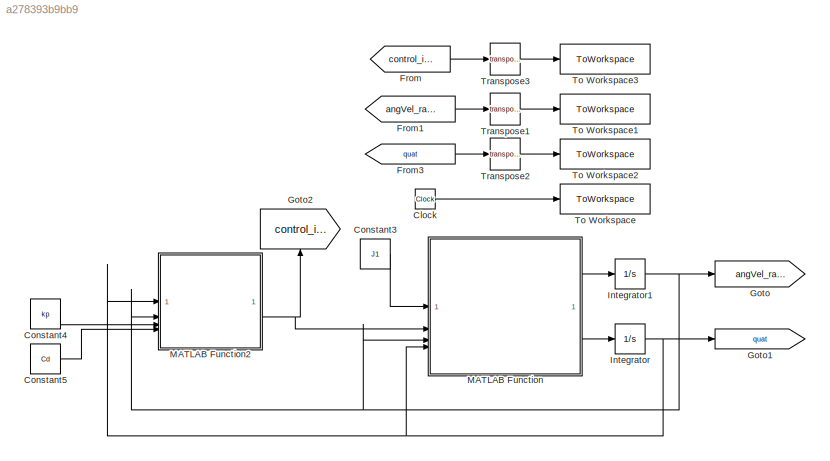
MODEL slx_a278393b9bb9
KIND model
CONFIG AbsTol = auto
CONFIG EnableMultiTasking = off
CONFIG FixedStep = 1e-2
CONFIG MaxStep = auto
CONFIG MinStep = auto
CONFIG RelTol = 1e-3
CONFIG SampleTimeConstraint = Unconstrained
CONFIG SolverName = FixedStepAuto
CONFIG StartTime = 0.0
CONFIG StopTime = 300
BLOCK [Clock] Clock
BLOCK [Constant] Constant3
  Value = J1
BLOCK [Constant] Constant4
  Value = kp
BLOCK [Constant] Constant5
  Value = Cd
BLOCK [From] From
  GotoTag = control_input
BLOCK [From] From1
  GotoTag = angVel_rads
BLOCK [From] From3
  GotoTag = quat
BLOCK [Goto] Goto
  GotoTag = angVel_rads
BLOCK [Goto] Goto1
  GotoTag = quat
BLOCK [Goto] Goto2
  GotoTag = control_input
  NameLocation = right
BLOCK [Integrator] Integrator
  InitialCondition = q0
BLOCK [Integrator] Integrator1
  InitialCondition = w0
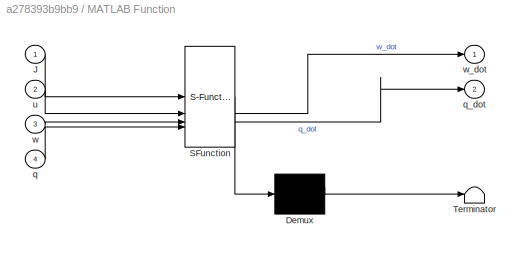
BLOCK [SubSystem] MATLAB Function
  ErrorFcn = Stateflow.Translate.translate
  PermitHierarchicalResolution = ExplicitOnly
  SFBlockType = MATLAB Function
  TreatAsAtomicUnit = on
BLOCK [Demux] MATLAB Function/ Demux 
  Outputs = 1
BLOCK [S-Function] MATLAB Function/ SFunction 
  EnableBusSupport = on
  FunctionName = sf_sfun
  PortCounts = [4 3]
  SFcnIsStateOwnerBlock = off
  SFunctionDeploymentMode = off
  Tag = Stateflow S-Function 2
BLOCK [Terminator] MATLAB Function/ Terminator 
BLOCK [Inport] MATLAB Function/J
BLOCK [Inport] MATLAB Function/q
  Port = 4
BLOCK [Outport] MATLAB Function/q_dot
  Port = 2
BLOCK [Inport] MATLAB Function/u
  Port = 2
BLOCK [Inport] MATLAB Function/w
  Port = 3
BLOCK [Outport] MATLAB Function/w_dot
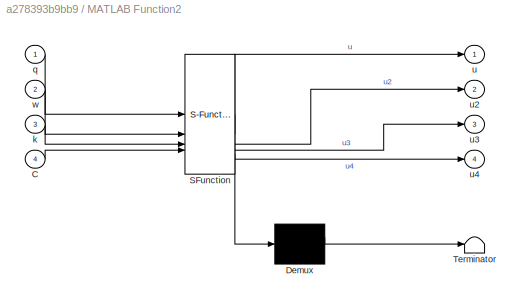
BLOCK [SubSystem] MATLAB Function2
  ErrorFcn = Stateflow.Translate.translate
  PermitHierarchicalResolution = ExplicitOnly
  SFBlockType = MATLAB Function
  TreatAsAtomicUnit = on
BLOCK [Demux] MATLAB Function2/ Demux 
  Outputs = 1
BLOCK [S-Function] MATLAB Function2/ SFunction 
  EnableBusSupport = on
  FunctionName = sf_sfun
  PortCounts = [4 5]
  SFcnIsStateOwnerBlock = off
  SFunctionDeploymentMode = off
  Tag = Stateflow S-Function 3
BLOCK [Terminator] MATLAB Function2/ Terminator 
BLOCK [Inport] MATLAB Function2/C
  Port = 4
BLOCK [Inport] MATLAB Function2/k
  Port = 3
BLOCK [Inport] MATLAB Function2/q
BLOCK [Outport] MATLAB Function2/u
BLOCK [Outport] MATLAB Function2/u2
  Port = 2
BLOCK [Outport] MATLAB Function2/u3
  Port = 3
BLOCK [Outport] MATLAB Function2/u4
  Port = 4
BLOCK [Inport] MATLAB Function2/w
  Port = 2
BLOCK [ToWorkspace] To Workspace
  FixptAsFi = on
  MaxDataPoints = inf
  SampleTime = -1
  Save2DSignal = 2-D array (concatenate along first dimension)
  VariableName = t_simulink
BLOCK [ToWorkspace] To Workspace1
  FixptAsFi = on
  MaxDataPoints = inf
  SampleTime = -1
  Save2DSignal = 2-D array (concatenate along first dimension)
  VariableName = w
BLOCK [ToWorkspace] To Workspace2
  FixptAsFi = on
  MaxDataPoints = inf
  SampleTime = -1
  Save2DSignal = 2-D array (concatenate along first dimension)
  VariableName = q
BLOCK [ToWorkspace] To Workspace3
  FixptAsFi = on
  MaxDataPoints = inf
  SampleTime = -1
  Save2DSignal = 2-D array (concatenate along first dimension)
  VariableName = u_control
BLOCK [Math] Transpose1
  Operator = transpose
BLOCK [Math] Transpose2
  Operator = transpose
BLOCK [Math] Transpose3
  Operator = transpose
LINE Clock:1 -> To Workspace:1
LINE Constant3:1 -> MATLAB Function:1
LINE Constant4:1 -> MATLAB Function2:3
LINE Constant5:1 -> MATLAB Function2:4
LINE From1:1 -> Transpose1:1
LINE From3:1 -> Transpose2:1
LINE From:1 -> Transpose3:1
NET Integrator1:1 -> Goto:1, MATLAB Function2:2, MATLAB Function:3
NET Integrator:1 -> Goto1:1, MATLAB Function2:1, MATLAB Function:4
NET MATLAB Function2:2 -> Goto2:1, MATLAB Function:2
LINE MATLAB Function:1 -> Integrator1:1
LINE MATLAB Function:2 -> Integrator:1
LINE Transpose1:1 -> To Workspace1:1
LINE Transpose2:1 -> To Workspace2:1
LINE Transpose3:1 -> To Workspace3:1
note: NET lines group one-source signal fan-out (src -> all destinations, sorted); 1:1 wires keep LINE
CHART MATLAB Function states=1 transitions=1
  STATE_LABEL 'eML_blk_kernel()'
  STATE_LABEL 'SCRIPT:\nfunction [w_dot,q_dot] = fcn(J,u,w,q)\n\n\nw1 = w(1);\nw2 = w(2);\nw3 = w(3);\n\nW = [ 0,  w3, -w2, w1;\n    -w3,   0,  w1, w2;\n     w2, -w1,   0, w3;\n    -w1, -w2, -w3,  0 ];\n\n% output\nw_dot = inv(J)*(u-cross(w,J*w));\n\nq_dot = 0.5*W*q;\n\nend\n'
CHART MATLAB Function2 states=1 transitions=1
  STATE_LABEL 'eML_blk_kernel()'
  STATE_LABEL 'SCRIPT:\nfunction [u,u2,u3,u4]= fcn(q,w,k,C)\n\nI3x3 = eye(3,3);\nK = k*I3x3;\n\n% Controller I\n% Controller II\nK2 = k*sign(q(4))*I3x3;\n% Controller III\nC3 = C*(1+transpose(q(1:3))*q(1:3));\n% Controller IIII\nC4 = C*(1-transpose(q(1:3))*q(1:3));\n\nu  = -K*q(1:3) - C*w;\nu2 = -K2*q(1:3) - C*w;\nu3 = -K2*q(1:3) - C3*w;\nu4 = -K2*q(1:3) - C4*w;\n\nend\n'
CHART  states=0 transitions=0
CHART  states=0 transitions=0
